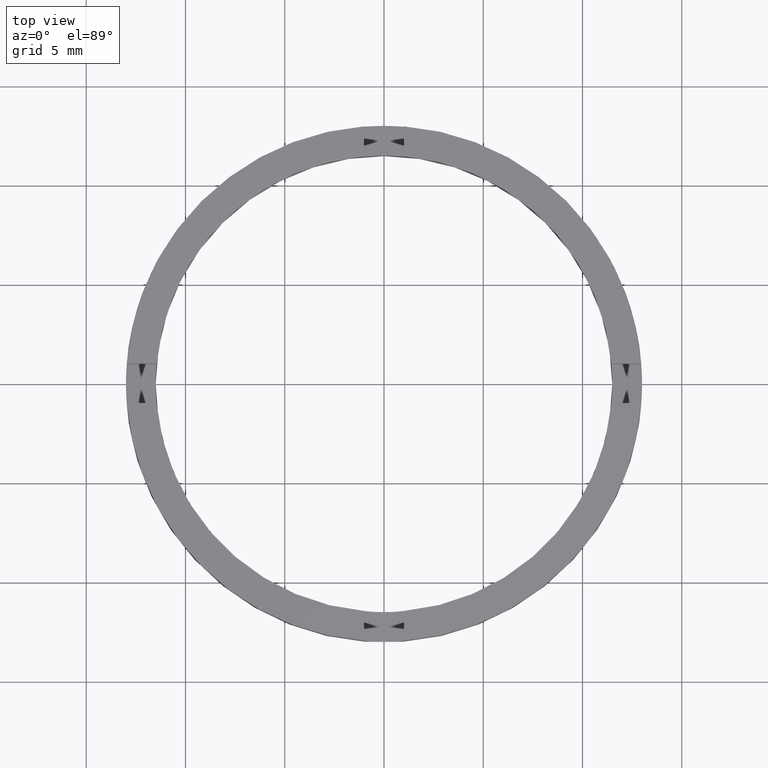
[diagram: clean part render]
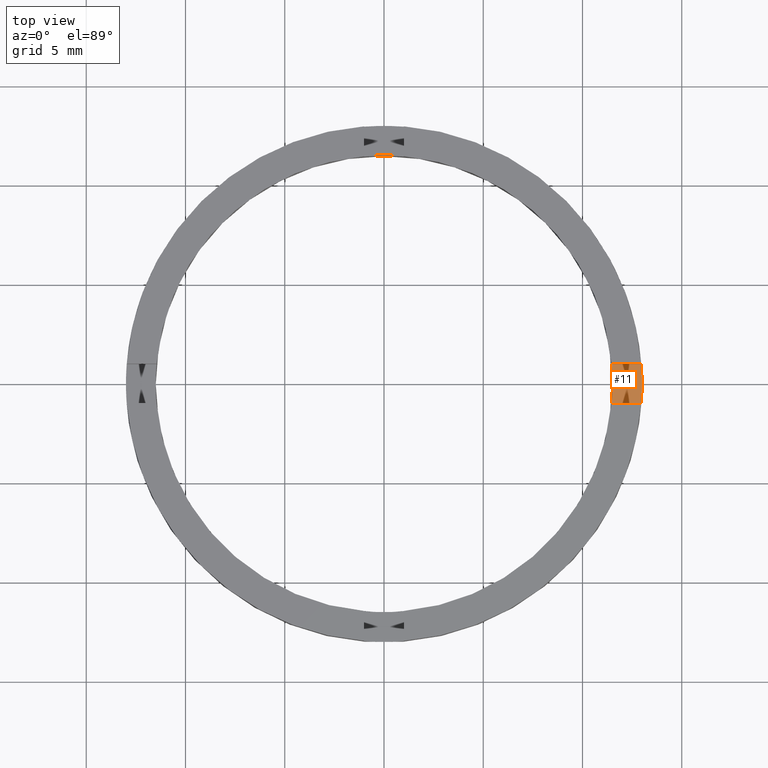
[diagram: same view with one face highlighted and labeled with its STEP entity id]
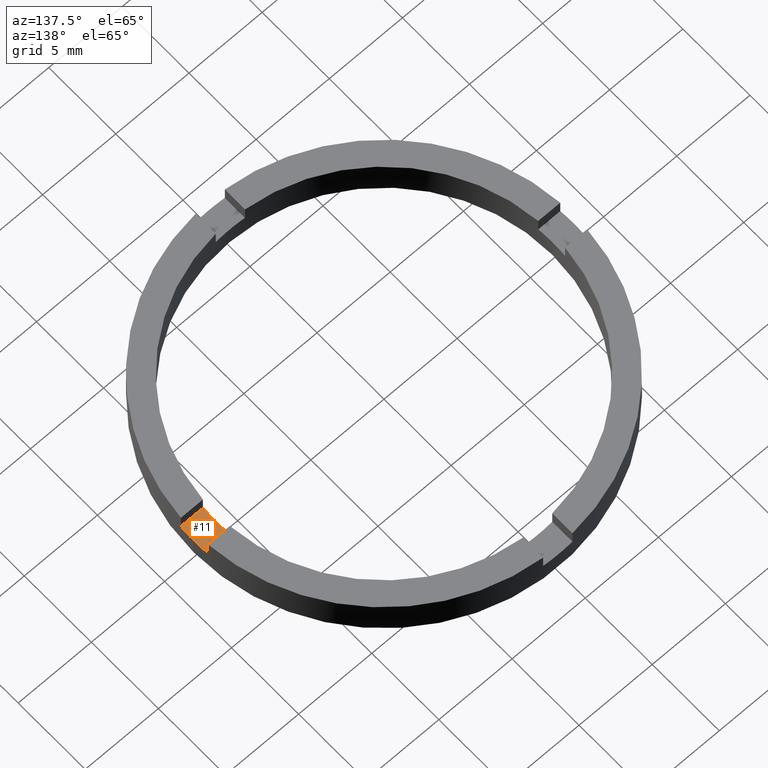
[diagram: same view with one face highlighted and labeled with its STEP entity id]
A machine part, top view. The second image highlights one B-rep face of the part: STEP entity #11.
A second angle (auxiliary view) of the same face is appended — the face is thin or edge-on in the first view.
In plain terms, the highlighted planar face has unit normal (0, 0, 1).
Its self-contained STEP definition (entity closure, byte-faithful):
#11 = ADVANCED_FACE ( 'NONE', ( #213 ), #26, .T. ) ;
#17 = DIRECTION ( 'NONE',  ( -1.000000000000000000, -4.336808689942017120E-17, -0.000000000000000000 ) ) ;
#22 = VECTOR ( 'NONE', #630, 1000.000000000000000 ) ;
#26 = PLANE ( 'NONE',  #526 ) ;
#32 = CIRCLE ( 'NONE', #468, 11.50000000000000000 ) ;
#40 = DIRECTION ( 'NONE',  ( 1.000000000000000000, 0.000000000000000000, 0.000000000000000000 ) ) ;
#51 = CARTESIAN_POINT ( 'NONE',  ( 11.45643923738958669, -1.000000000000160094, 1.500000000000000000 ) ) ;
#60 = EDGE_CURVE ( 'NONE', #105, #336, #462, .T. ) ;
#69 = EDGE_CURVE ( 'NONE', #336, #389, #464, .T. ) ;
#72 = ORIENTED_EDGE ( 'NONE', *, *, #69, .T. ) ;
#83 = AXIS2_PLACEMENT_3D ( 'NONE', #460, #621, #770 ) ;
#98 = VERTEX_POINT ( 'NONE', #51 ) ;
#105 = VERTEX_POINT ( 'NONE', #581 ) ;
#109 = DIRECTION ( 'NONE',  ( 0.000000000000000000, 0.000000000000000000, 1.000000000000000000 ) ) ;
#124 = CARTESIAN_POINT ( 'NONE',  ( 11.45643923738961334, 0.9999999999998400169, 1.500000000000000000 ) ) ;
#146 = DIRECTION ( 'NONE',  ( 1.000000000000000000, 0.000000000000000000, -0.000000000000000000 ) ) ;
#148 = ORIENTED_EDGE ( 'NONE', *, *, #60, .T. ) ;
#159 = EDGE_LOOP ( 'NONE', ( #148, #72, #398, #179, #694, #333 ) ) ;
#177 = VERTEX_POINT ( 'NONE', #217 ) ;
#179 = ORIENTED_EDGE ( 'NONE', *, *, #732, .F. ) ;
#190 = CARTESIAN_POINT ( 'NONE',  ( 0.000000000000000000, 0.000000000000000000, 1.500000000000000000 ) ) ;
#213 = FACE_OUTER_BOUND ( 'NONE', #159, .T. ) ;
#217 = CARTESIAN_POINT ( 'NONE',  ( 11.50000000000000000, 1.408343819019456176E-15, 1.500000000000000000 ) ) ;
#223 = AXIS2_PLACEMENT_3D ( 'NONE', #481, #709, #40 ) ;
#238 = CIRCLE ( 'NONE', #656, 11.50000000000000000 ) ;
#253 = CARTESIAN_POINT ( 'NONE',  ( 12.96148139681572964, 0.9999999999998402389, 1.500000000000000000 ) ) ;
#274 = LINE ( 'NONE', #670, #294 ) ;
#294 = VECTOR ( 'NONE', #17, 1000.000000000000000 ) ;
#295 = LINE ( 'NONE', #579, #22 ) ;
#303 = CARTESIAN_POINT ( 'NONE',  ( 0.000000000000000000, 0.000000000000000000, 1.500000000000000000 ) ) ;
#327 = EDGE_CURVE ( 'NONE', #98, #177, #238, .T. ) ;
#333 = ORIENTED_EDGE ( 'NONE', *, *, #747, .T. ) ;
#336 = VERTEX_POINT ( 'NONE', #493 ) ;
#350 = DIRECTION ( 'NONE',  ( 0.000000000000000000, 0.000000000000000000, 1.000000000000000000 ) ) ;
#389 = VERTEX_POINT ( 'NONE', #253 ) ;
#398 = ORIENTED_EDGE ( 'NONE', *, *, #619, .T. ) ;
#460 = CARTESIAN_POINT ( 'NONE',  ( 0.000000000000000000, 0.000000000000000000, 1.500000000000000000 ) ) ;
#462 = CIRCLE ( 'NONE', #83, 12.99999999999999822 ) ;
#464 = CIRCLE ( 'NONE', #223, 12.99999999999999822 ) ;
#468 = AXIS2_PLACEMENT_3D ( 'NONE', #190, #109, #774 ) ;
#481 = CARTESIAN_POINT ( 'NONE',  ( 0.000000000000000000, 0.000000000000000000, 1.500000000000000000 ) ) ;
#493 = CARTESIAN_POINT ( 'NONE',  ( 12.99999999999999822, 1.592040838891558898E-15, 1.500000000000000000 ) ) ;
#526 = AXIS2_PLACEMENT_3D ( 'NONE', #303, #350, #146 ) ;
#545 = CARTESIAN_POINT ( 'NONE',  ( 0.000000000000000000, 0.000000000000000000, 1.500000000000000000 ) ) ;
#579 = CARTESIAN_POINT ( 'NONE',  ( 2.999999999999992450, -1.000000000000160316, 1.500000000000000000 ) ) ;
#581 = CARTESIAN_POINT ( 'NONE',  ( 12.96148139681570655, -1.000000000000159872, 1.500000000000000000 ) ) ;
#588 = DIRECTION ( 'NONE',  ( 1.000000000000000000, 0.000000000000000000, 0.000000000000000000 ) ) ;
#619 = EDGE_CURVE ( 'NONE', #389, #655, #274, .T. ) ;
#621 = DIRECTION ( 'NONE',  ( 0.000000000000000000, 0.000000000000000000, 1.000000000000000000 ) ) ;
#630 = DIRECTION ( 'NONE',  ( 1.000000000000000000, 4.336808689942017120E-17, 0.000000000000000000 ) ) ;
#655 = VERTEX_POINT ( 'NONE', #124 ) ;
#656 = AXIS2_PLACEMENT_3D ( 'NONE', #545, #659, #588 ) ;
#659 = DIRECTION ( 'NONE',  ( 0.000000000000000000, 0.000000000000000000, 1.000000000000000000 ) ) ;
#670 = CARTESIAN_POINT ( 'NONE',  ( 2.999999999999992450, 0.9999999999998397948, 1.500000000000000000 ) ) ;
#694 = ORIENTED_EDGE ( 'NONE', *, *, #327, .F. ) ;
#709 = DIRECTION ( 'NONE',  ( 0.000000000000000000, 0.000000000000000000, 1.000000000000000000 ) ) ;
#732 = EDGE_CURVE ( 'NONE', #177, #655, #32, .T. ) ;
#747 = EDGE_CURVE ( 'NONE', #98, #105, #295, .T. ) ;
#770 = DIRECTION ( 'NONE',  ( 1.000000000000000000, 0.000000000000000000, 0.000000000000000000 ) ) ;
#774 = DIRECTION ( 'NONE',  ( 1.000000000000000000, 0.000000000000000000, 0.000000000000000000 ) ) ;